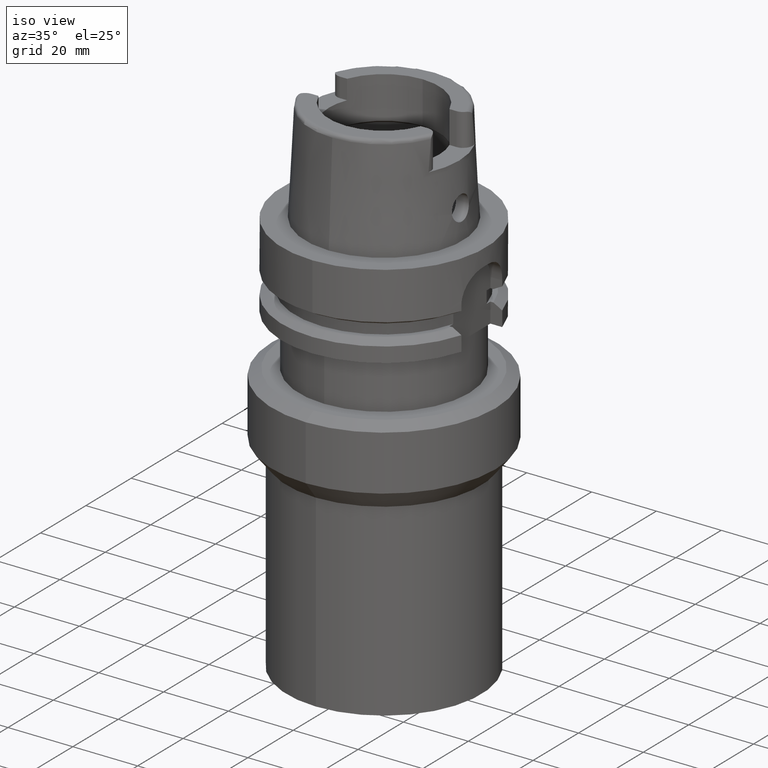
[diagram: clean part render]
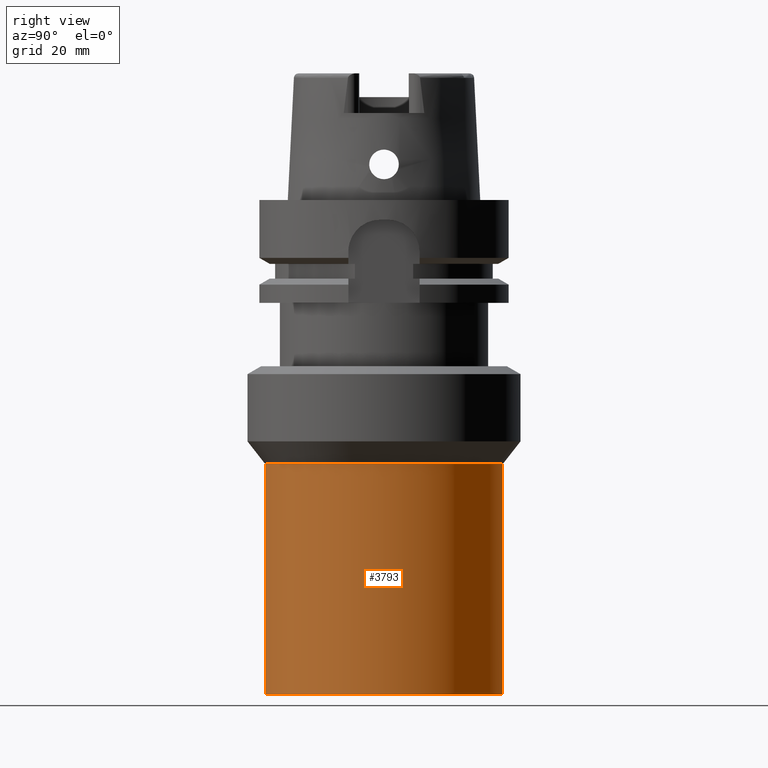
[diagram: tour spotlight — one face highlighted and labeled with its STEP entity id]
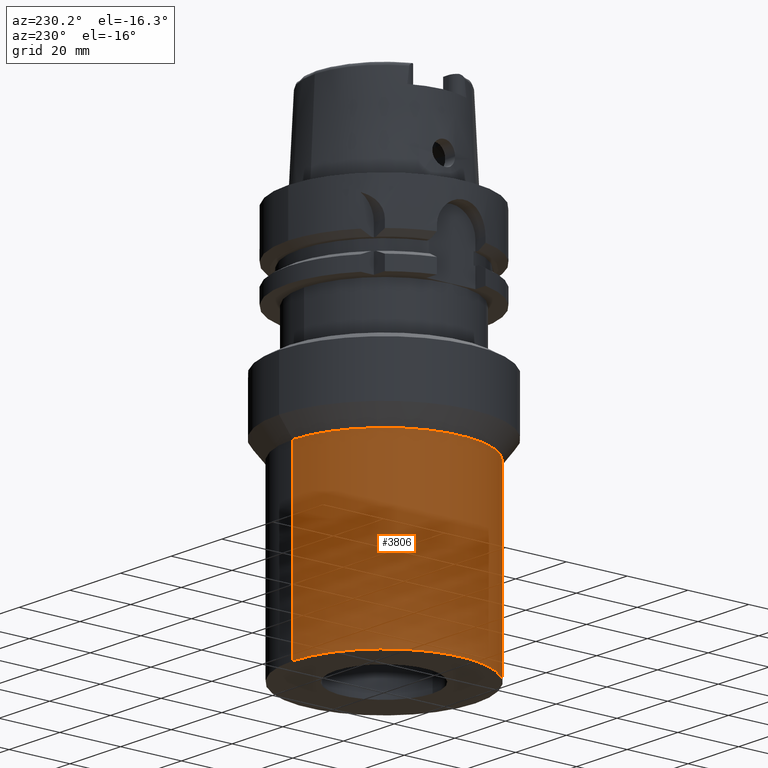
[diagram: tour spotlight — one face highlighted and labeled with its STEP entity id]
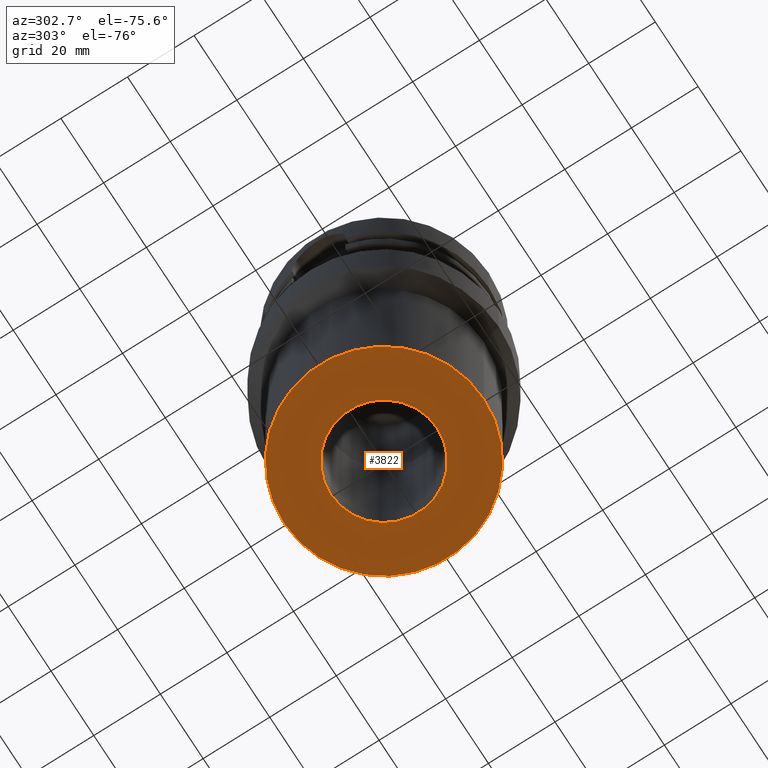
[diagram: tour spotlight — one face highlighted and labeled with its STEP entity id]
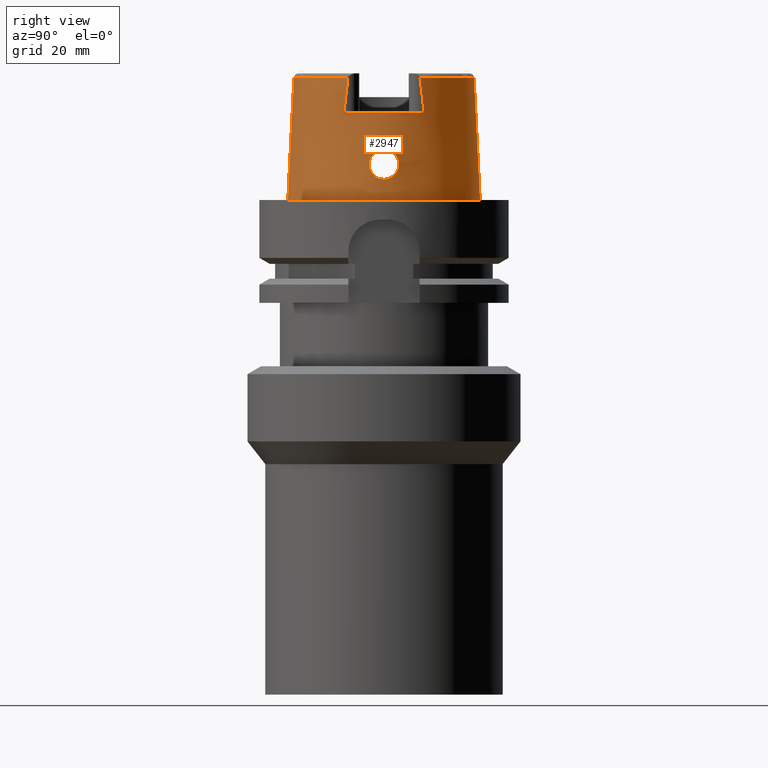
[diagram: tour spotlight — one face highlighted and labeled with its STEP entity id]
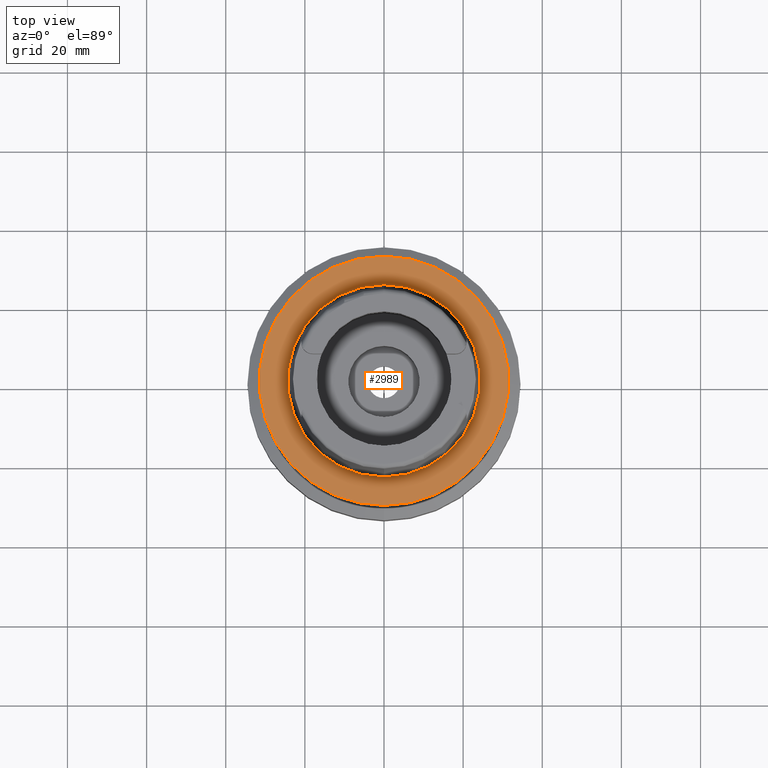
[diagram: tour spotlight — one face highlighted and labeled with its STEP entity id]
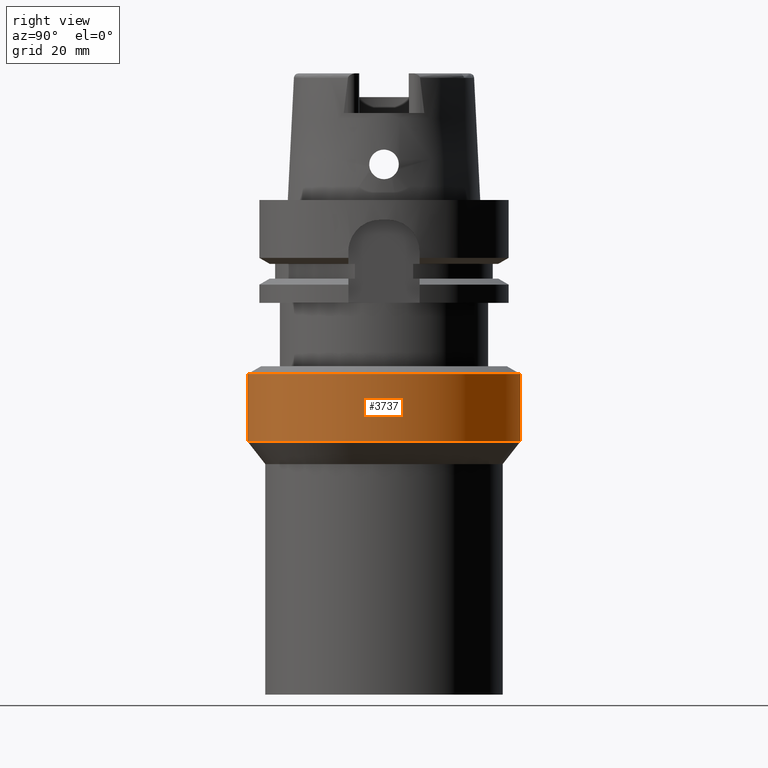
[diagram: tour spotlight — one face highlighted and labeled with its STEP entity id]
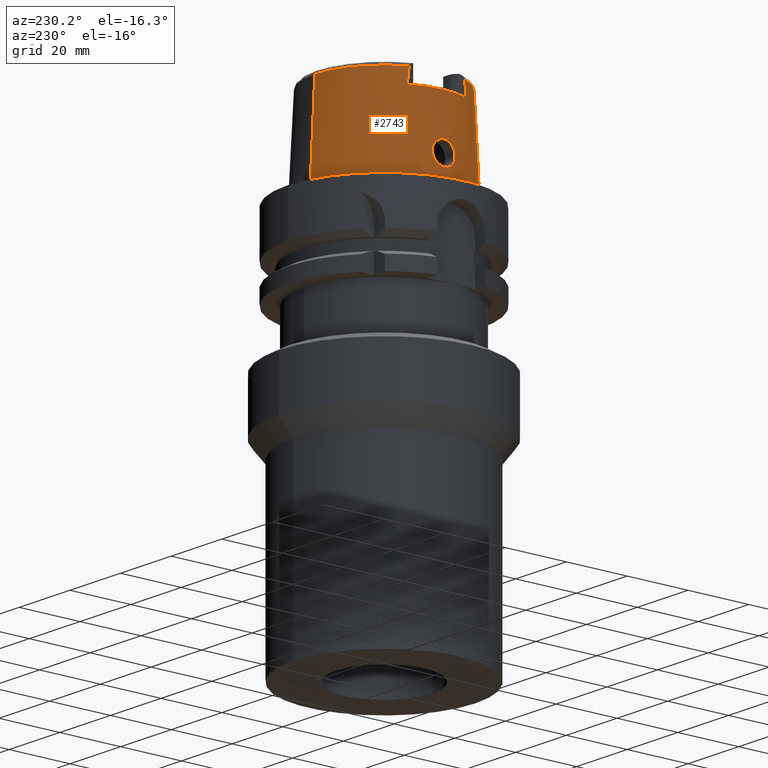
[diagram: tour spotlight — one face highlighted and labeled with its STEP entity id]
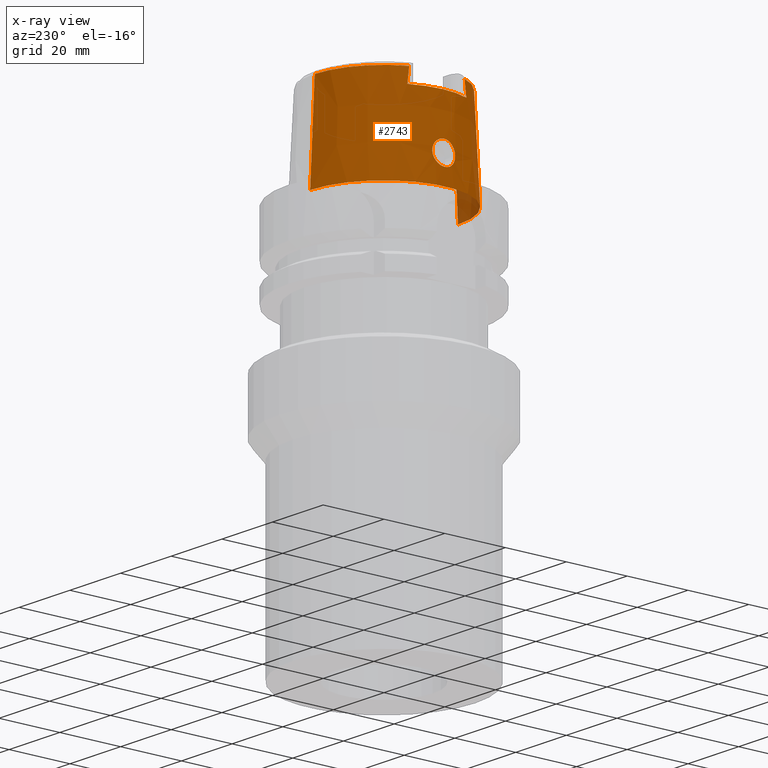
[diagram: x-ray of the same camera — body ghosted, this tour face saturated]
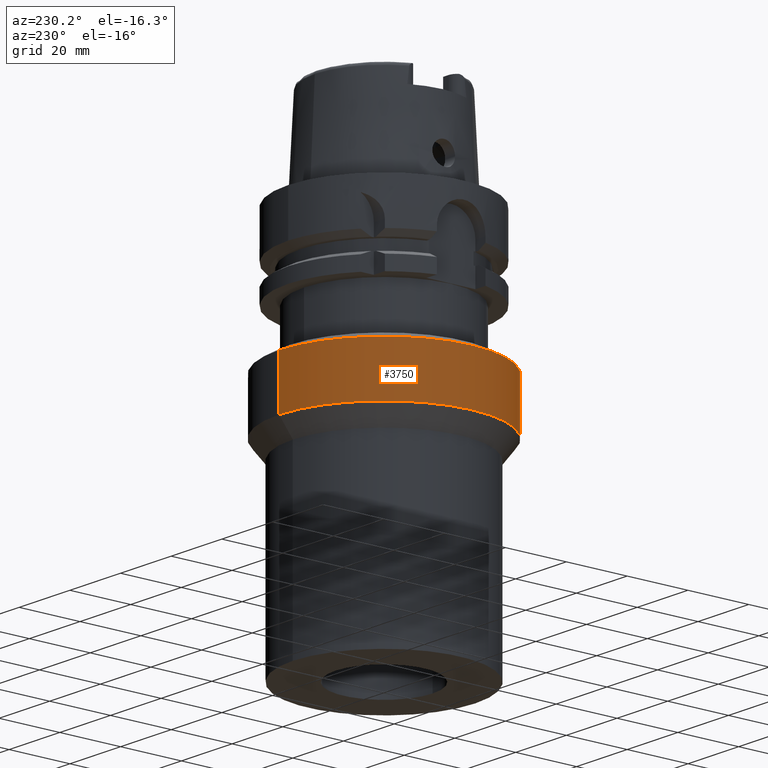
[diagram: tour spotlight — one face highlighted and labeled with its STEP entity id]
A machine part: a face-by-face anatomy tour. The part has 98 B-rep faces; the first image is the clean iso view, then the 8 largest visible faces are spotlighted one at a time (largest first), each with its STEP entity span.

Face 1 — right view, entity #3793. In plain terms, the highlighted cylindrical surface (partial cylindrical patch) has radius 30 mm, axis along (0, 0, 1).
Definition (entity closure, byte-faithful):
#1733=CARTESIAN_POINT('',(0.E0,0.E0,-6.674257092160E1));
#1734=DIRECTION('',(0.E0,0.E0,-1.E0));
#1735=DIRECTION('',(0.E0,1.E0,0.E0));
#1736=AXIS2_PLACEMENT_3D('',#1733,#1734,#1735);
#1749=DIRECTION('',(0.E0,0.E0,-1.E0));
#1750=VECTOR('',#1749,5.825742907840E1);
#1751=CARTESIAN_POINT('',(0.E0,3.E1,-6.674257092160E1));
#1752=LINE('',#1751,#1750);
#1756=DIRECTION('',(0.E0,0.E0,-1.E0));
#1757=VECTOR('',#1756,5.825742907840E1);
#1758=CARTESIAN_POINT('',(0.E0,-3.E1,-6.674257092160E1));
#1759=LINE('',#1758,#1757);
#1763=CARTESIAN_POINT('',(0.E0,0.E0,-1.25E2));
#1764=DIRECTION('',(0.E0,0.E0,1.E0));
#1765=DIRECTION('',(0.E0,-1.E0,0.E0));
#1766=AXIS2_PLACEMENT_3D('',#1763,#1764,#1765);
#2426=CARTESIAN_POINT('',(0.E0,-3.E1,-1.25E2));
#2427=CARTESIAN_POINT('',(0.E0,3.E1,-1.25E2));
#2428=VERTEX_POINT('',#2426);
#2429=VERTEX_POINT('',#2427);
#2430=CARTESIAN_POINT('',(0.E0,3.E1,-6.674257092160E1));
#2431=VERTEX_POINT('',#2430);
#2432=CARTESIAN_POINT('',(0.E0,-3.E1,-6.674257092160E1));
#2433=VERTEX_POINT('',#2432);
#3779=CARTESIAN_POINT('',(0.E0,0.E0,-1.3285E2));
#3780=DIRECTION('',(0.E0,0.E0,1.E0));
#3781=DIRECTION('',(0.E0,1.E0,0.E0));
#3782=AXIS2_PLACEMENT_3D('',#3779,#3780,#3781);
#3783=CYLINDRICAL_SURFACE('',#3782,3.E1);
#3785=ORIENTED_EDGE('',*,*,#3784,.T.);
#3787=ORIENTED_EDGE('',*,*,#3786,.F.);
#3789=ORIENTED_EDGE('',*,*,#3788,.F.);
#3790=ORIENTED_EDGE('',*,*,#3772,.F.);
#3791=EDGE_LOOP('',(#3785,#3787,#3789,#3790));
#3792=FACE_OUTER_BOUND('',#3791,.F.);
#1737=CIRCLE('',#1736,3.E1);
#1767=CIRCLE('',#1766,3.E1);
#3772=EDGE_CURVE('',#2431,#2433,#1737,.T.);
#3784=EDGE_CURVE('',#2431,#2429,#1752,.T.);
#3786=EDGE_CURVE('',#2428,#2429,#1767,.T.);
#3788=EDGE_CURVE('',#2433,#2428,#1759,.T.);
#3793=ADVANCED_FACE('',(#3792),#3783,.T.);

Face 2 — auxiliary view, entity #3806. In plain terms, the highlighted cylindrical surface (partial cylindrical patch) has radius 30 mm, axis along (0, 0, 1).
Definition (entity closure, byte-faithful):
#1718=CARTESIAN_POINT('',(0.E0,0.E0,-6.674257092160E1));
#1719=DIRECTION('',(0.E0,0.E0,-1.E0));
#1720=DIRECTION('',(0.E0,-1.E0,0.E0));
#1721=AXIS2_PLACEMENT_3D('',#1718,#1719,#1720);
#1749=DIRECTION('',(0.E0,0.E0,-1.E0));
#1750=VECTOR('',#1749,5.825742907840E1);
#1751=CARTESIAN_POINT('',(0.E0,3.E1,-6.674257092160E1));
#1752=LINE('',#1751,#1750);
#1756=DIRECTION('',(0.E0,0.E0,-1.E0));
#1757=VECTOR('',#1756,5.825742907840E1);
#1758=CARTESIAN_POINT('',(0.E0,-3.E1,-6.674257092160E1));
#1759=LINE('',#1758,#1757);
#1771=CARTESIAN_POINT('',(0.E0,0.E0,-1.25E2));
#1772=DIRECTION('',(0.E0,0.E0,1.E0));
#1773=DIRECTION('',(0.E0,1.E0,0.E0));
#1774=AXIS2_PLACEMENT_3D('',#1771,#1772,#1773);
#2426=CARTESIAN_POINT('',(0.E0,-3.E1,-1.25E2));
#2427=CARTESIAN_POINT('',(0.E0,3.E1,-1.25E2));
#2428=VERTEX_POINT('',#2426);
#2429=VERTEX_POINT('',#2427);
#2430=CARTESIAN_POINT('',(0.E0,3.E1,-6.674257092160E1));
#2431=VERTEX_POINT('',#2430);
#2432=CARTESIAN_POINT('',(0.E0,-3.E1,-6.674257092160E1));
#2433=VERTEX_POINT('',#2432);
#3794=CARTESIAN_POINT('',(0.E0,0.E0,-1.3285E2));
#3795=DIRECTION('',(0.E0,0.E0,1.E0));
#3796=DIRECTION('',(0.E0,1.E0,0.E0));
#3797=AXIS2_PLACEMENT_3D('',#3794,#3795,#3796);
#3798=CYLINDRICAL_SURFACE('',#3797,3.E1);
#3799=ORIENTED_EDGE('',*,*,#3784,.F.);
#3800=ORIENTED_EDGE('',*,*,#3761,.F.);
#3801=ORIENTED_EDGE('',*,*,#3788,.T.);
#3803=ORIENTED_EDGE('',*,*,#3802,.F.);
#3804=EDGE_LOOP('',(#3799,#3800,#3801,#3803));
#3805=FACE_OUTER_BOUND('',#3804,.F.);
#1722=CIRCLE('',#1721,3.E1);
#1775=CIRCLE('',#1774,3.E1);
#3761=EDGE_CURVE('',#2433,#2431,#1722,.T.);
#3784=EDGE_CURVE('',#2431,#2429,#1752,.T.);
#3788=EDGE_CURVE('',#2433,#2428,#1759,.T.);
#3802=EDGE_CURVE('',#2429,#2428,#1775,.T.);
#3806=ADVANCED_FACE('',(#3805),#3798,.T.);

Face 3 — auxiliary view, entity #3822. In plain terms, the highlighted planar face has unit normal (0, 0, 1).
Definition (entity closure, byte-faithful):
#1763=CARTESIAN_POINT('',(0.E0,0.E0,-1.25E2));
#1764=DIRECTION('',(0.E0,0.E0,1.E0));
#1765=DIRECTION('',(0.E0,-1.E0,0.E0));
#1766=AXIS2_PLACEMENT_3D('',#1763,#1764,#1765);
#1771=CARTESIAN_POINT('',(0.E0,0.E0,-1.25E2));
#1772=DIRECTION('',(0.E0,0.E0,1.E0));
#1773=DIRECTION('',(0.E0,1.E0,0.E0));
#1774=AXIS2_PLACEMENT_3D('',#1771,#1772,#1773);
#1779=CARTESIAN_POINT('',(0.E0,0.E0,-1.25E2));
#1780=DIRECTION('',(0.E0,0.E0,-1.E0));
#1781=DIRECTION('',(0.E0,-1.E0,0.E0));
#1782=AXIS2_PLACEMENT_3D('',#1779,#1780,#1781);
#1787=CARTESIAN_POINT('',(0.E0,0.E0,-1.25E2));
#1788=DIRECTION('',(0.E0,0.E0,-1.E0));
#1789=DIRECTION('',(0.E0,1.E0,0.E0));
#1790=AXIS2_PLACEMENT_3D('',#1787,#1788,#1789);
#2422=CARTESIAN_POINT('',(0.E0,1.6E1,-1.25E2));
#2423=VERTEX_POINT('',#2422);
#2424=CARTESIAN_POINT('',(0.E0,-1.6E1,-1.25E2));
#2425=VERTEX_POINT('',#2424);
#2426=CARTESIAN_POINT('',(0.E0,-3.E1,-1.25E2));
#2427=CARTESIAN_POINT('',(0.E0,3.E1,-1.25E2));
#2428=VERTEX_POINT('',#2426);
#2429=VERTEX_POINT('',#2427);
#3807=CARTESIAN_POINT('',(0.E0,0.E0,-1.25E2));
#3808=DIRECTION('',(0.E0,0.E0,1.E0));
#3809=DIRECTION('',(0.E0,1.E0,0.E0));
#3810=AXIS2_PLACEMENT_3D('',#3807,#3808,#3809);
#3811=PLANE('',#3810);
#3812=ORIENTED_EDGE('',*,*,#3786,.T.);
#3813=ORIENTED_EDGE('',*,*,#3802,.T.);
#3814=EDGE_LOOP('',(#3812,#3813));
#3815=FACE_OUTER_BOUND('',#3814,.F.);
#3817=ORIENTED_EDGE('',*,*,#3816,.T.);
#3819=ORIENTED_EDGE('',*,*,#3818,.T.);
#3820=EDGE_LOOP('',(#3817,#3819));
#3821=FACE_BOUND('',#3820,.F.);
#1767=CIRCLE('',#1766,3.E1);
#1775=CIRCLE('',#1774,3.E1);
#1783=CIRCLE('',#1782,1.6E1);
#1791=CIRCLE('',#1790,1.6E1);
#3786=EDGE_CURVE('',#2428,#2429,#1767,.T.);
#3802=EDGE_CURVE('',#2429,#2428,#1775,.T.);
#3816=EDGE_CURVE('',#2425,#2423,#1783,.T.);
#3818=EDGE_CURVE('',#2423,#2425,#1791,.T.);
#3822=ADVANCED_FACE('',(#3815,#3821),#3811,.F.);

Face 4 — right view, entity #2947. In plain terms, the highlighted conical surface has half-angle 2.862 deg.
Definition (entity closure, byte-faithful):
#180=DIRECTION('',(8.032179027582E-5,-4.993928193351E-2,-9.987522523971E-1));
#181=VECTOR('',#180,3.089848062794E1);
#182=CARTESIAN_POINT('',(-2.481821280836E-3,-2.277198688789E1,
3.085992712280E1));
#183=LINE('',#182,#181);
#276=CARTESIAN_POINT('',(2.086974110890E1,-9.111383545094E0,3.085992740066E1));
#281=CARTESIAN_POINT('',(0.E0,0.E0,3.085992712280E1));
#282=DIRECTION('',(0.E0,0.E0,-1.E0));
#283=DIRECTION('',(9.164655183266E-1,-4.001136759952E-1,0.E0));
#284=AXIS2_PLACEMENT_3D('',#281,#282,#283);
#369=CARTESIAN_POINT('',(0.E0,0.E0,2.2E1));
#370=DIRECTION('',(0.E0,0.E0,-1.E0));
#371=DIRECTION('',(8.989877876695E-1,4.379736951247E-1,0.E0));
#372=AXIS2_PLACEMENT_3D('',#369,#370,#371);
#493=CARTESIAN_POINT('',(0.E0,0.E0,3.085992712280E1));
#494=DIRECTION('',(0.E0,0.E0,-1.E0));
#495=DIRECTION('',(0.E0,1.E0,0.E0));
#496=AXIS2_PLACEMENT_3D('',#493,#494,#495);
#519=CARTESIAN_POINT('',(2.086999606042E1,1.016757672286E1,2.2E1));
#520=CARTESIAN_POINT('',(2.086999606042E1,1.005830459083E1,2.295713692900E1));
#521=CARTESIAN_POINT('',(2.087000073898E1,9.837693731168E0,2.486635586676E1));
#522=CARTESIAN_POINT('',(2.087000332294E1,9.498302441447E0,2.771500404696E1));
#523=CARTESIAN_POINT('',(2.086999175382E1,9.267368850798E0,2.960362234661E1));
#524=CARTESIAN_POINT('',(2.086999175382E1,9.150018522240E0,3.054599590786E1));
#529=CARTESIAN_POINT('',(2.086999175382E1,9.150018522240E0,3.054599590786E1));
#530=CARTESIAN_POINT('',(2.086999175382E1,9.145671884311E0,3.058090127809E1));
#531=CARTESIAN_POINT('',(2.086998416656E1,9.136990373350E0,3.065018241710E1));
#532=CARTESIAN_POINT('',(2.086989220690E1,9.124128539109E0,3.075517018128E1));
#533=CARTESIAN_POINT('',(2.086979784206E1,9.115619992224E0,3.082498881500E1));
#534=CARTESIAN_POINT('',(2.086974104061E1,9.111384044247E0,3.085992600402E1));
#539=DIRECTION('',(-8.032179027593E-5,4.993928193351E-2,-9.987522523971E-1));
#540=VECTOR('',#539,3.089848062794E1);
#541=CARTESIAN_POINT('',(2.481821280840E-3,2.277198688789E1,3.085992712280E1));
#542=LINE('',#541,#540);
#546=CARTESIAN_POINT('',(2.086974110890E1,-9.111383545094E0,3.085992740066E1));
#547=CARTESIAN_POINT('',(2.086979791523E1,-9.115619747637E0,3.082498808699E1));
#548=CARTESIAN_POINT('',(2.086989359503E1,-9.124126100509E0,3.075510751726E1));
#549=CARTESIAN_POINT('',(2.086997922485E1,-9.137002228665E0,3.065040319043E1));
#550=CARTESIAN_POINT('',(2.087000236792E1,-9.145647815676E0,3.058042815478E1));
#551=CARTESIAN_POINT('',(2.087000236792E1,-9.149994681381E0,3.054552122895E1));
#556=CARTESIAN_POINT('',(2.087000236792E1,-9.149994681381E0,3.054552122895E1));
#557=CARTESIAN_POINT('',(2.087000236792E1,-9.267237586258E0,2.960401770380E1));
#558=CARTESIAN_POINT('',(2.087000130158E1,-9.498473773453E0,2.771533041693E1));
#559=CARTESIAN_POINT('',(2.086999189259E1,-9.837864426117E0,2.486682029449E1));
#560=CARTESIAN_POINT('',(2.087001804958E1,-1.005818307170E1,2.295730285027E1));
#561=CARTESIAN_POINT('',(2.087001804958E1,-1.016747560172E1,2.2E1));
#566=CARTESIAN_POINT('',(2.367751368058E1,0.E0,1.275E1));
#567=CARTESIAN_POINT('',(2.367751368058E1,-3.278615447524E-1,1.275E1));
#568=CARTESIAN_POINT('',(2.366790199176E1,-9.837141475394E-1,1.266342840946E1));
#569=CARTESIAN_POINT('',(2.362979866051E1,-1.900131468705E0,1.228324838087E1));
#570=CARTESIAN_POINT('',(2.358192971292E1,-2.687921098359E0,1.167633810946E1));
#571=CARTESIAN_POINT('',(2.354364538825E1,-3.287527919381E0,1.089180597124E1));
#572=CARTESIAN_POINT('',(2.353289234890E1,-3.665097526823E0,9.975970455521E0));
#573=CARTESIAN_POINT('',(2.356160129386E1,-3.792372775653E0,9.001704364390E0));
#574=CARTESIAN_POINT('',(2.363166774904E1,-3.665410319735E0,8.024088671320E0));
#575=CARTESIAN_POINT('',(2.373492427779E1,-3.286796477174E0,7.106498135347E0));
#576=CARTESIAN_POINT('',(2.385202683593E1,-2.684105767591E0,6.319219286447E0));
#577=CARTESIAN_POINT('',(2.396009347673E1,-1.891776333860E0,5.711817077930E0));
#578=CARTESIAN_POINT('',(2.403480103863E1,-9.764417720146E-1,5.335055772717E0));
#579=CARTESIAN_POINT('',(2.405252611747E1,-3.248874246042E-1,5.25E0));
#580=CARTESIAN_POINT('',(2.405252611747E1,0.E0,5.25E0));
#585=CARTESIAN_POINT('',(2.405252611747E1,0.E0,5.25E0));
#586=CARTESIAN_POINT('',(2.405252611747E1,3.243674067140E-1,5.25E0));
#587=CARTESIAN_POINT('',(2.403482530937E1,9.739995999196E-1,5.334965880498E0));
#588=CARTESIAN_POINT('',(2.396102041244E1,1.882176802516E0,5.707093985446E0));
#589=CARTESIAN_POINT('',(2.385381325005E1,2.673240216324E0,6.308519299033E0));
#590=CARTESIAN_POINT('',(2.373634687374E1,3.280940127631E0,7.095282942118E0));
#591=CARTESIAN_POINT('',(2.363192792338E1,3.665171494824E0,8.019917035799E0));
#592=CARTESIAN_POINT('',(2.356125846802E1,3.792995631128E0,9.006439295220E0));
#593=CARTESIAN_POINT('',(2.353280577206E1,3.662825180192E0,9.984920241694E0));
#594=CARTESIAN_POINT('',(2.354389571308E1,3.283459762182E0,1.089807465666E1));
#595=CARTESIAN_POINT('',(2.358203309442E1,2.686265788925E0,1.167735522045E1));
#596=CARTESIAN_POINT('',(2.362972091982E1,1.901387326803E0,1.228237417769E1));
#597=CARTESIAN_POINT('',(2.366786515717E1,9.851871637571E-1,1.266310492622E1));
#598=CARTESIAN_POINT('',(2.367751368058E1,3.285652895214E-1,1.275E1));
#599=CARTESIAN_POINT('',(2.367751368058E1,0.E0,1.275E1));
#634=CARTESIAN_POINT('',(0.E0,0.E0,-7.389644451905E-13));
#635=DIRECTION('',(0.E0,0.E0,1.E0));
#636=DIRECTION('',(0.E0,-1.E0,0.E0));
#637=AXIS2_PLACEMENT_3D('',#634,#635,#636);
#2331=CARTESIAN_POINT('',(0.E0,-2.277198729362E1,3.085992712280E1));
#2332=VERTEX_POINT('',#2331);
#2333=CARTESIAN_POINT('',(0.E0,-2.431503482329E1,-3.410605131648E-13));
#2334=VERTEX_POINT('',#2333);
#2335=CARTESIAN_POINT('',(0.E0,2.431503482329E1,-7.389644451905E-13));
#2336=VERTEX_POINT('',#2335);
#2337=CARTESIAN_POINT('',(2.481821280840E-3,2.277198688789E1,3.085992712280E1));
#2338=VERTEX_POINT('',#2337);
#2341=CARTESIAN_POINT('',(2.086974092012E1,9.111384045666E0,3.085992712280E1));
#2342=VERTEX_POINT('',#2341);
#2343=VERTEX_POINT('',#276);
#2344=CARTESIAN_POINT('',(2.087E1,1.016755860605E1,2.2E1));
#2345=CARTESIAN_POINT('',(2.087E1,-1.016755860605E1,2.2E1));
#2346=VERTEX_POINT('',#2344);
#2347=VERTEX_POINT('',#2345);
#2348=VERTEX_POINT('',#524);
#2349=VERTEX_POINT('',#551);
#2350=VERTEX_POINT('',#566);
#2351=VERTEX_POINT('',#580);
#2920=CARTESIAN_POINT('',(0.E0,0.E0,1.542996356140E1));
#2921=DIRECTION('',(0.E0,0.E0,-1.E0));
#2922=DIRECTION('',(0.E0,-1.E0,0.E0));
#2923=AXIS2_PLACEMENT_3D('',#2920,#2921,#2922);
#2924=CONICAL_SURFACE('',#2923,2.354351105845E1,2.8625E0);
#2925=ORIENTED_EDGE('',*,*,#2834,.F.);
#2927=ORIENTED_EDGE('',*,*,#2926,.T.);
#2929=ORIENTED_EDGE('',*,*,#2928,.T.);
#2930=ORIENTED_EDGE('',*,*,#2912,.F.);
#2931=ORIENTED_EDGE('',*,*,#2727,.T.);
#2933=ORIENTED_EDGE('',*,*,#2932,.F.);
#2934=ORIENTED_EDGE('',*,*,#2723,.F.);
#2935=ORIENTED_EDGE('',*,*,#2764,.F.);
#2936=ORIENTED_EDGE('',*,*,#2782,.T.);
#2938=ORIENTED_EDGE('',*,*,#2937,.T.);
#2939=EDGE_LOOP('',(#2925,#2927,#2929,#2930,#2931,#2933,#2934,#2935,#2936,
#2938));
#2940=FACE_OUTER_BOUND('',#2939,.F.);
#2942=ORIENTED_EDGE('',*,*,#2941,.T.);
#2944=ORIENTED_EDGE('',*,*,#2943,.T.);
#2945=EDGE_LOOP('',(#2942,#2944));
#2946=FACE_BOUND('',#2945,.F.);
#285=CIRCLE('',#284,2.277198729362E1);
#373=CIRCLE('',#372,2.321499834175E1);
#497=CIRCLE('',#496,2.277198729362E1);
#525=B_SPLINE_CURVE_WITH_KNOTS('',3,(#519,#520,#521,#522,#523,#524),
.UNSPECIFIED.,.F.,.F.,(4,1,1,4),(0.E0,3.333333333333E-1,6.666666666667E-1,1.E0),
.UNSPECIFIED.);
#535=B_SPLINE_CURVE_WITH_KNOTS('',3,(#529,#530,#531,#532,#533,#534),
.UNSPECIFIED.,.F.,.F.,(4,1,1,4),(0.E0,3.333333333333E-1,6.666666666667E-1,1.E0),
.UNSPECIFIED.);
#552=B_SPLINE_CURVE_WITH_KNOTS('',3,(#546,#547,#548,#549,#550,#551),
.UNSPECIFIED.,.F.,.F.,(4,1,1,4),(0.E0,3.333333333333E-1,6.666666666667E-1,1.E0),
.UNSPECIFIED.);
#562=B_SPLINE_CURVE_WITH_KNOTS('',3,(#556,#557,#558,#559,#560,#561),
.UNSPECIFIED.,.F.,.F.,(4,1,1,4),(0.E0,3.333333333333E-1,6.666666666667E-1,1.E0),
.UNSPECIFIED.);
#581=B_SPLINE_CURVE_WITH_KNOTS('',3,(#566,#567,#568,#569,#570,#571,#572,#573,
#574,#575,#576,#577,#578,#579,#580),.UNSPECIFIED.,.F.,.F.,(4,1,1,1,1,1,1,1,1,1,
1,1,4),(0.E0,8.333333333333E-2,1.666666666667E-1,2.5E-1,3.333333333333E-1,
4.166666666667E-1,5.E-1,5.833333333333E-1,6.666666666667E-1,7.5E-1,
8.333333333333E-1,9.166666666667E-1,1.E0),.UNSPECIFIED.);
#600=B_SPLINE_CURVE_WITH_KNOTS('',3,(#585,#586,#587,#588,#589,#590,#591,#592,
#593,#594,#595,#596,#597,#598,#599),.UNSPECIFIED.,.F.,.F.,(4,1,1,1,1,1,1,1,1,1,
1,1,4),(0.E0,8.333333333333E-2,1.666666666667E-1,2.5E-1,3.333333333333E-1,
4.166666666667E-1,5.E-1,5.833333333333E-1,6.666666666667E-1,7.5E-1,
8.333333333333E-1,9.166666666667E-1,1.E0),.UNSPECIFIED.);
#638=CIRCLE('',#637,2.431503482329E1);
#2723=EDGE_CURVE('',#2332,#2334,#183,.T.);
#2727=EDGE_CURVE('',#2338,#2336,#542,.T.);
#2764=EDGE_CURVE('',#2343,#2332,#285,.T.);
#2782=EDGE_CURVE('',#2343,#2349,#552,.T.);
#2834=EDGE_CURVE('',#2346,#2347,#373,.T.);
#2912=EDGE_CURVE('',#2338,#2342,#497,.T.);
#2926=EDGE_CURVE('',#2346,#2348,#525,.T.);
#2928=EDGE_CURVE('',#2348,#2342,#535,.T.);
#2932=EDGE_CURVE('',#2334,#2336,#638,.T.);
#2937=EDGE_CURVE('',#2349,#2347,#562,.T.);
#2941=EDGE_CURVE('',#2350,#2351,#581,.T.);
#2943=EDGE_CURVE('',#2351,#2350,#600,.T.);
#2947=ADVANCED_FACE('',(#2940,#2946),#2924,.T.);

Face 5 — top view, entity #2989. In plain terms, the highlighted planar face has unit normal (0, 0, 1).
Definition (entity closure, byte-faithful):
#618=CARTESIAN_POINT('',(0.E0,0.E0,3.410605131648E-13));
#619=DIRECTION('',(0.E0,0.E0,-1.E0));
#620=DIRECTION('',(0.E0,-1.E0,0.E0));
#621=AXIS2_PLACEMENT_3D('',#618,#619,#620);
#626=CARTESIAN_POINT('',(0.E0,0.E0,3.410605131648E-13));
#627=DIRECTION('',(0.E0,0.E0,-1.E0));
#628=DIRECTION('',(0.E0,1.E0,0.E0));
#629=AXIS2_PLACEMENT_3D('',#626,#627,#628);
#634=CARTESIAN_POINT('',(0.E0,0.E0,-7.389644451905E-13));
#635=DIRECTION('',(0.E0,0.E0,1.E0));
#636=DIRECTION('',(0.E0,-1.E0,0.E0));
#637=AXIS2_PLACEMENT_3D('',#634,#635,#636);
#642=CARTESIAN_POINT('',(0.E0,0.E0,-7.389644451905E-13));
#643=DIRECTION('',(0.E0,0.E0,1.E0));
#644=DIRECTION('',(0.E0,1.E0,0.E0));
#645=AXIS2_PLACEMENT_3D('',#642,#643,#644);
#2333=CARTESIAN_POINT('',(0.E0,-2.431503482329E1,-3.410605131648E-13));
#2334=VERTEX_POINT('',#2333);
#2335=CARTESIAN_POINT('',(0.E0,2.431503482329E1,-7.389644451905E-13));
#2336=VERTEX_POINT('',#2335);
#2603=CARTESIAN_POINT('',(0.E0,3.15E1,1.894780628694E-13));
#2604=VERTEX_POINT('',#2603);
#2605=CARTESIAN_POINT('',(0.E0,-3.15E1,3.410605131648E-13));
#2606=VERTEX_POINT('',#2605);
#2974=CARTESIAN_POINT('',(0.E0,0.E0,0.E0));
#2975=DIRECTION('',(0.E0,0.E0,1.E0));
#2976=DIRECTION('',(0.E0,1.E0,0.E0));
#2977=AXIS2_PLACEMENT_3D('',#2974,#2975,#2976);
#2978=PLANE('',#2977);
#2980=ORIENTED_EDGE('',*,*,#2979,.T.);
#2982=ORIENTED_EDGE('',*,*,#2981,.T.);
#2983=EDGE_LOOP('',(#2980,#2982));
#2984=FACE_OUTER_BOUND('',#2983,.F.);
#2985=ORIENTED_EDGE('',*,*,#2932,.T.);
#2986=ORIENTED_EDGE('',*,*,#2725,.T.);
#2987=EDGE_LOOP('',(#2985,#2986));
#2988=FACE_BOUND('',#2987,.F.);
#622=CIRCLE('',#621,3.15E1);
#630=CIRCLE('',#629,3.15E1);
#638=CIRCLE('',#637,2.431503482329E1);
#646=CIRCLE('',#645,2.431503482329E1);
#2725=EDGE_CURVE('',#2336,#2334,#646,.T.);
#2932=EDGE_CURVE('',#2334,#2336,#638,.T.);
#2979=EDGE_CURVE('',#2606,#2604,#622,.T.);
#2981=EDGE_CURVE('',#2604,#2606,#630,.T.);
#2989=ADVANCED_FACE('',(#2984,#2988),#2978,.T.);

Face 6 — right view, entity #3737. In plain terms, the highlighted cylindrical surface (partial cylindrical patch) has radius 34.5 mm, axis along (0, 0, 1).
Definition (entity closure, byte-faithful):
#1681=CARTESIAN_POINT('',(0.E0,0.E0,-4.4E1));
#1682=DIRECTION('',(0.E0,0.E0,-1.E0));
#1683=DIRECTION('',(0.E0,1.E0,0.E0));
#1684=AXIS2_PLACEMENT_3D('',#1681,#1682,#1683);
#1689=DIRECTION('',(0.E0,1.337492208490E-14,-1.E0));
#1690=VECTOR('',#1689,1.7E1);
#1691=CARTESIAN_POINT('',(0.E0,3.45E1,-4.4E1));
#1692=LINE('',#1691,#1690);
#1696=DIRECTION('',(0.E0,-1.337492208490E-14,-1.E0));
#1697=VECTOR('',#1696,1.7E1);
#1698=CARTESIAN_POINT('',(0.E0,-3.45E1,-4.4E1));
#1699=LINE('',#1698,#1697);
#1741=CARTESIAN_POINT('',(0.E0,0.E0,-6.1E1));
#1742=DIRECTION('',(0.E0,0.E0,1.E0));
#1743=DIRECTION('',(0.E0,-1.E0,0.E0));
#1744=AXIS2_PLACEMENT_3D('',#1741,#1742,#1743);
#2434=CARTESIAN_POINT('',(0.E0,3.45E1,-6.1E1));
#2435=VERTEX_POINT('',#2434);
#2436=CARTESIAN_POINT('',(0.E0,-3.45E1,-6.1E1));
#2437=VERTEX_POINT('',#2436);
#2438=CARTESIAN_POINT('',(0.E0,3.45E1,-4.4E1));
#2439=VERTEX_POINT('',#2438);
#2440=CARTESIAN_POINT('',(0.E0,-3.45E1,-4.4E1));
#2441=VERTEX_POINT('',#2440);
#3723=CARTESIAN_POINT('',(0.E0,0.E0,-1.3285E2));
#3724=DIRECTION('',(0.E0,0.E0,1.E0));
#3725=DIRECTION('',(0.E0,1.E0,0.E0));
#3726=AXIS2_PLACEMENT_3D('',#3723,#3724,#3725);
#3727=CYLINDRICAL_SURFACE('',#3726,3.45E1);
#3729=ORIENTED_EDGE('',*,*,#3728,.T.);
#3731=ORIENTED_EDGE('',*,*,#3730,.F.);
#3733=ORIENTED_EDGE('',*,*,#3732,.F.);
#3734=ORIENTED_EDGE('',*,*,#3716,.F.);
#3735=EDGE_LOOP('',(#3729,#3731,#3733,#3734));
#3736=FACE_OUTER_BOUND('',#3735,.F.);
#1685=CIRCLE('',#1684,3.45E1);
#1745=CIRCLE('',#1744,3.45E1);
#3716=EDGE_CURVE('',#2439,#2441,#1685,.T.);
#3728=EDGE_CURVE('',#2439,#2435,#1692,.T.);
#3730=EDGE_CURVE('',#2437,#2435,#1745,.T.);
#3732=EDGE_CURVE('',#2441,#2437,#1699,.T.);
#3737=ADVANCED_FACE('',(#3736),#3727,.T.);

Face 7 — auxiliary view, entity #2743. An x-ray twin of the same camera follows (body ghosted, this face saturated) — the face is partly hidden behind the body. In plain terms, the highlighted conical surface has half-angle 2.862 deg.
Definition (entity closure, byte-faithful):
#69=CARTESIAN_POINT('',(0.E0,0.E0,2.6E1));
#70=DIRECTION('',(0.E0,0.E0,-1.E0));
#71=DIRECTION('',(-9.068002397791E-1,-4.215605829967E-1,0.E0));
#72=AXIS2_PLACEMENT_3D('',#69,#70,#71);
#160=CARTESIAN_POINT('',(-2.086999931535E1,-9.702216590561E0,2.6E1));
#161=CARTESIAN_POINT('',(-2.086999931535E1,-9.642048820361E0,2.650727061302E1));
#162=CARTESIAN_POINT('',(-2.087000013188E1,-9.520999784311E0,2.752034962291E1));
#163=CARTESIAN_POINT('',(-2.087000056538E1,-9.336893546791E0,2.903557629453E1));
#164=CARTESIAN_POINT('',(-2.086999859286E1,-9.212633972085E0,3.004273962856E1));
#165=CARTESIAN_POINT('',(-2.086999859286E1,-9.150003160547E0,3.054568941686E1));
#170=CARTESIAN_POINT('',(-2.086999859286E1,-9.150003160547E0,3.054568941686E1));
#171=CARTESIAN_POINT('',(-2.086999859286E1,-9.145656550786E0,3.058059438465E1));
#172=CARTESIAN_POINT('',(-2.086998097501E1,-9.136997528982E0,3.065032563414E1));
#173=CARTESIAN_POINT('',(-2.086989311877E1,-9.124126494631E0,3.075512926222E1));
#174=CARTESIAN_POINT('',(-2.086979784206E1,-9.115619992218E0,3.082498881506E1));
#175=CARTESIAN_POINT('',(-2.086974104061E1,-9.111384044252E0,3.085992600398E1));
#180=DIRECTION('',(8.032179027582E-5,-4.993928193351E-2,-9.987522523971E-1));
#181=VECTOR('',#180,3.089848062794E1);
#182=CARTESIAN_POINT('',(-2.481821280836E-3,-2.277198688789E1,
3.085992712280E1));
#183=LINE('',#182,#181);
#187=CARTESIAN_POINT('',(-2.086974110890E1,9.111383545109E0,3.085992740054E1));
#188=CARTESIAN_POINT('',(-2.086979791523E1,9.115619747629E0,3.082498808706E1));
#189=CARTESIAN_POINT('',(-2.086989333338E1,9.124126689045E0,3.075511924106E1));
#190=CARTESIAN_POINT('',(-2.086998014064E1,9.137000168784E0,3.065036215719E1));
#191=CARTESIAN_POINT('',(-2.087000040551E1,9.145652229696E0,3.058051608324E1));
#192=CARTESIAN_POINT('',(-2.087000040551E1,9.149999089201E0,3.054560915662E1));
#197=CARTESIAN_POINT('',(-2.087000040551E1,9.149999089201E0,3.054560915662E1));
#198=CARTESIAN_POINT('',(-2.087000040551E1,9.212612082841E0,3.004280312583E1));
#199=CARTESIAN_POINT('',(-2.087000020370E1,9.336923098267E0,2.903562847786E1));
#200=CARTESIAN_POINT('',(-2.086999867880E1,9.521029051521E0,2.752042416367E1));
#201=CARTESIAN_POINT('',(-2.087000294700E1,9.642028220320E0,2.650729690943E1));
#202=CARTESIAN_POINT('',(-2.087000294700E1,9.702199254900E0,2.6E1));
#207=CARTESIAN_POINT('',(-2.405252611747E1,7.219293415728E-14,5.25E0));
#208=CARTESIAN_POINT('',(-2.405252611747E1,-3.243717798752E-1,5.25E0));
#209=CARTESIAN_POINT('',(-2.403482500053E1,-9.740100598509E-1,
5.334967101575E0));
#210=CARTESIAN_POINT('',(-2.396101813201E1,-1.882196544510E0,5.707106427186E0));
#211=CARTESIAN_POINT('',(-2.385381316964E1,-2.673240143249E0,6.308519449006E0));
#212=CARTESIAN_POINT('',(-2.373634474053E1,-3.280950023462E0,7.095299048507E0));
#213=CARTESIAN_POINT('',(-2.363192755953E1,-3.665172103494E0,8.019921616570E0));
#214=CARTESIAN_POINT('',(-2.356125758085E1,-3.792996438193E0,9.006453939602E0));
#215=CARTESIAN_POINT('',(-2.353280509428E1,-3.662821219228E0,9.984948164688E0));
#216=CARTESIAN_POINT('',(-2.354389760579E1,-3.283425760281E0,1.089813063504E1));
#217=CARTESIAN_POINT('',(-2.358203358769E1,-2.686259669448E0,1.167735627493E1));
#218=CARTESIAN_POINT('',(-2.362972075489E1,-1.901386950951E0,1.228237298514E1));
#219=CARTESIAN_POINT('',(-2.366786420874E1,-9.852172740789E-1,
1.266309561720E1));
#220=CARTESIAN_POINT('',(-2.367751368058E1,-3.285790205501E-1,1.275E1));
#221=CARTESIAN_POINT('',(-2.367751368058E1,0.E0,1.275E1));
#226=CARTESIAN_POINT('',(-2.367751368058E1,0.E0,1.275E1));
#227=CARTESIAN_POINT('',(-2.367751368058E1,3.278657405560E-1,1.275E1));
#228=CARTESIAN_POINT('',(-2.366790186454E1,9.837247710004E-1,1.266342800075E1));
#229=CARTESIAN_POINT('',(-2.362979708360E1,1.900161296001E0,1.228323012816E1));
#230=CARTESIAN_POINT('',(-2.358192946327E1,2.687923193522E0,1.167633510170E1));
#231=CARTESIAN_POINT('',(-2.354364485263E1,3.287539046829E0,1.089178673635E1));
#232=CARTESIAN_POINT('',(-2.353289246948E1,3.665095932267E0,9.975972160044E0));
#233=CARTESIAN_POINT('',(-2.356160159776E1,3.792374267080E0,9.001693378618E0));
#234=CARTESIAN_POINT('',(-2.363167012035E1,3.665405970874E0,8.024057582625E0));
#235=CARTESIAN_POINT('',(-2.373493248917E1,3.286759851175E0,7.106436420309E0));
#236=CARTESIAN_POINT('',(-2.385202866364E1,2.684091638382E0,6.319210828242E0));
#237=CARTESIAN_POINT('',(-2.396009312096E1,1.891775730681E0,5.711818820281E0));
#238=CARTESIAN_POINT('',(-2.403479926879E1,9.764710564595E-1,5.335064598958E0));
#239=CARTESIAN_POINT('',(-2.405252611747E1,3.249010923142E-1,5.25E0));
#240=CARTESIAN_POINT('',(-2.405252611747E1,7.219293415728E-14,5.25E0));
#289=CARTESIAN_POINT('',(0.E0,0.E0,3.085992712280E1));
#290=DIRECTION('',(0.E0,0.E0,-1.E0));
#291=DIRECTION('',(0.E0,-1.E0,0.E0));
#292=AXIS2_PLACEMENT_3D('',#289,#290,#291);
#485=CARTESIAN_POINT('',(0.E0,0.E0,3.085992712280E1));
#486=DIRECTION('',(0.E0,0.E0,-1.E0));
#487=DIRECTION('',(-9.164655183266E-1,4.001136759952E-1,0.E0));
#488=AXIS2_PLACEMENT_3D('',#485,#486,#487);
#539=DIRECTION('',(-8.032179027593E-5,4.993928193351E-2,-9.987522523971E-1));
#540=VECTOR('',#539,3.089848062794E1);
#541=CARTESIAN_POINT('',(2.481821280840E-3,2.277198688789E1,3.085992712280E1));
#542=LINE('',#541,#540);
#642=CARTESIAN_POINT('',(0.E0,0.E0,-7.389644451905E-13));
#643=DIRECTION('',(0.E0,0.E0,1.E0));
#644=DIRECTION('',(0.E0,1.E0,0.E0));
#645=AXIS2_PLACEMENT_3D('',#642,#643,#644);
#2299=CARTESIAN_POINT('',(-2.086999931535E1,-9.702216590561E0,2.6E1));
#2300=VERTEX_POINT('',#2299);
#2301=CARTESIAN_POINT('',(-2.087E1,9.702213322399E0,2.6E1));
#2302=VERTEX_POINT('',#2301);
#2327=VERTEX_POINT('',#187);
#2328=VERTEX_POINT('',#192);
#2329=VERTEX_POINT('',#165);
#2330=VERTEX_POINT('',#175);
#2331=CARTESIAN_POINT('',(0.E0,-2.277198729362E1,3.085992712280E1));
#2332=VERTEX_POINT('',#2331);
#2333=CARTESIAN_POINT('',(0.E0,-2.431503482329E1,-3.410605131648E-13));
#2334=VERTEX_POINT('',#2333);
#2335=CARTESIAN_POINT('',(0.E0,2.431503482329E1,-7.389644451905E-13));
#2336=VERTEX_POINT('',#2335);
#2337=CARTESIAN_POINT('',(2.481821280840E-3,2.277198688789E1,3.085992712280E1));
#2338=VERTEX_POINT('',#2337);
#2339=VERTEX_POINT('',#207);
#2340=VERTEX_POINT('',#221);
#2712=CARTESIAN_POINT('',(0.E0,0.E0,1.542996356140E1));
#2713=DIRECTION('',(0.E0,0.E0,-1.E0));
#2714=DIRECTION('',(0.E0,-1.E0,0.E0));
#2715=AXIS2_PLACEMENT_3D('',#2712,#2713,#2714);
#2716=CONICAL_SURFACE('',#2715,2.354351105845E1,2.8625E0);
#2717=ORIENTED_EDGE('',*,*,#2650,.F.);
#2719=ORIENTED_EDGE('',*,*,#2718,.T.);
#2720=ORIENTED_EDGE('',*,*,#2700,.T.);
#2722=ORIENTED_EDGE('',*,*,#2721,.F.);
#2724=ORIENTED_EDGE('',*,*,#2723,.T.);
#2726=ORIENTED_EDGE('',*,*,#2725,.F.);
#2728=ORIENTED_EDGE('',*,*,#2727,.F.);
#2730=ORIENTED_EDGE('',*,*,#2729,.F.);
#2732=ORIENTED_EDGE('',*,*,#2731,.T.);
#2734=ORIENTED_EDGE('',*,*,#2733,.T.);
#2735=EDGE_LOOP('',(#2717,#2719,#2720,#2722,#2724,#2726,#2728,#2730,#2732,
#2734));
#2736=FACE_OUTER_BOUND('',#2735,.F.);
#2738=ORIENTED_EDGE('',*,*,#2737,.T.);
#2740=ORIENTED_EDGE('',*,*,#2739,.T.);
#2741=EDGE_LOOP('',(#2738,#2740));
#2742=FACE_BOUND('',#2741,.F.);
#73=CIRCLE('',#72,2.301499170874E1);
#166=B_SPLINE_CURVE_WITH_KNOTS('',3,(#160,#161,#162,#163,#164,#165),
.UNSPECIFIED.,.F.,.F.,(4,1,1,4),(0.E0,3.333333333333E-1,6.666666666667E-1,1.E0),
.UNSPECIFIED.);
#176=B_SPLINE_CURVE_WITH_KNOTS('',3,(#170,#171,#172,#173,#174,#175),
.UNSPECIFIED.,.F.,.F.,(4,1,1,4),(0.E0,3.333333333333E-1,6.666666666667E-1,1.E0),
.UNSPECIFIED.);
#193=B_SPLINE_CURVE_WITH_KNOTS('',3,(#187,#188,#189,#190,#191,#192),
.UNSPECIFIED.,.F.,.F.,(4,1,1,4),(0.E0,3.333333333333E-1,6.666666666667E-1,1.E0),
.UNSPECIFIED.);
#203=B_SPLINE_CURVE_WITH_KNOTS('',3,(#197,#198,#199,#200,#201,#202),
.UNSPECIFIED.,.F.,.F.,(4,1,1,4),(0.E0,3.333333333333E-1,6.666666666667E-1,1.E0),
.UNSPECIFIED.);
#222=B_SPLINE_CURVE_WITH_KNOTS('',3,(#207,#208,#209,#210,#211,#212,#213,#214,
#215,#216,#217,#218,#219,#220,#221),.UNSPECIFIED.,.F.,.F.,(4,1,1,1,1,1,1,1,1,1,
1,1,4),(0.E0,8.333333333333E-2,1.666666666667E-1,2.5E-1,3.333333333333E-1,
4.166666666667E-1,5.E-1,5.833333333333E-1,6.666666666667E-1,7.5E-1,
8.333333333333E-1,9.166666666667E-1,1.E0),.UNSPECIFIED.);
#241=B_SPLINE_CURVE_WITH_KNOTS('',3,(#226,#227,#228,#229,#230,#231,#232,#233,
#234,#235,#236,#237,#238,#239,#240),.UNSPECIFIED.,.F.,.F.,(4,1,1,1,1,1,1,1,1,1,
1,1,4),(0.E0,8.333333333333E-2,1.666666666667E-1,2.5E-1,3.333333333333E-1,
4.166666666667E-1,5.E-1,5.833333333333E-1,6.666666666667E-1,7.5E-1,
8.333333333333E-1,9.166666666667E-1,1.E0),.UNSPECIFIED.);
#293=CIRCLE('',#292,2.277198729362E1);
#489=CIRCLE('',#488,2.277198729362E1);
#646=CIRCLE('',#645,2.431503482329E1);
#2650=EDGE_CURVE('',#2300,#2302,#73,.T.);
#2700=EDGE_CURVE('',#2329,#2330,#176,.T.);
#2718=EDGE_CURVE('',#2300,#2329,#166,.T.);
#2721=EDGE_CURVE('',#2332,#2330,#293,.T.);
#2723=EDGE_CURVE('',#2332,#2334,#183,.T.);
#2725=EDGE_CURVE('',#2336,#2334,#646,.T.);
#2727=EDGE_CURVE('',#2338,#2336,#542,.T.);
#2729=EDGE_CURVE('',#2327,#2338,#489,.T.);
#2731=EDGE_CURVE('',#2327,#2328,#193,.T.);
#2733=EDGE_CURVE('',#2328,#2302,#203,.T.);
#2737=EDGE_CURVE('',#2339,#2340,#222,.T.);
#2739=EDGE_CURVE('',#2340,#2339,#241,.T.);
#2743=ADVANCED_FACE('',(#2736,#2742),#2716,.T.);

Face 8 — auxiliary view, entity #3750. In plain terms, the highlighted cylindrical surface (partial cylindrical patch) has radius 34.5 mm, axis along (0, 0, 1).
Definition (entity closure, byte-faithful):
#1666=CARTESIAN_POINT('',(0.E0,0.E0,-4.4E1));
#1667=DIRECTION('',(0.E0,0.E0,-1.E0));
#1668=DIRECTION('',(0.E0,-1.E0,0.E0));
#1669=AXIS2_PLACEMENT_3D('',#1666,#1667,#1668);
#1689=DIRECTION('',(0.E0,1.337492208490E-14,-1.E0));
#1690=VECTOR('',#1689,1.7E1);
#1691=CARTESIAN_POINT('',(0.E0,3.45E1,-4.4E1));
#1692=LINE('',#1691,#1690);
#1696=DIRECTION('',(0.E0,-1.337492208490E-14,-1.E0));
#1697=VECTOR('',#1696,1.7E1);
#1698=CARTESIAN_POINT('',(0.E0,-3.45E1,-4.4E1));
#1699=LINE('',#1698,#1697);
#1703=CARTESIAN_POINT('',(0.E0,0.E0,-6.1E1));
#1704=DIRECTION('',(0.E0,0.E0,1.E0));
#1705=DIRECTION('',(0.E0,1.E0,0.E0));
#1706=AXIS2_PLACEMENT_3D('',#1703,#1704,#1705);
#2434=CARTESIAN_POINT('',(0.E0,3.45E1,-6.1E1));
#2435=VERTEX_POINT('',#2434);
#2436=CARTESIAN_POINT('',(0.E0,-3.45E1,-6.1E1));
#2437=VERTEX_POINT('',#2436);
#2438=CARTESIAN_POINT('',(0.E0,3.45E1,-4.4E1));
#2439=VERTEX_POINT('',#2438);
#2440=CARTESIAN_POINT('',(0.E0,-3.45E1,-4.4E1));
#2441=VERTEX_POINT('',#2440);
#3738=CARTESIAN_POINT('',(0.E0,0.E0,-1.3285E2));
#3739=DIRECTION('',(0.E0,0.E0,1.E0));
#3740=DIRECTION('',(0.E0,1.E0,0.E0));
#3741=AXIS2_PLACEMENT_3D('',#3738,#3739,#3740);
#3742=CYLINDRICAL_SURFACE('',#3741,3.45E1);
#3743=ORIENTED_EDGE('',*,*,#3728,.F.);
#3744=ORIENTED_EDGE('',*,*,#3705,.F.);
#3745=ORIENTED_EDGE('',*,*,#3732,.T.);
#3747=ORIENTED_EDGE('',*,*,#3746,.F.);
#3748=EDGE_LOOP('',(#3743,#3744,#3745,#3747));
#3749=FACE_OUTER_BOUND('',#3748,.F.);
#1670=CIRCLE('',#1669,3.45E1);
#1707=CIRCLE('',#1706,3.45E1);
#3705=EDGE_CURVE('',#2441,#2439,#1670,.T.);
#3728=EDGE_CURVE('',#2439,#2435,#1692,.T.);
#3732=EDGE_CURVE('',#2441,#2437,#1699,.T.);
#3746=EDGE_CURVE('',#2435,#2437,#1707,.T.);
#3750=ADVANCED_FACE('',(#3749),#3742,.T.);